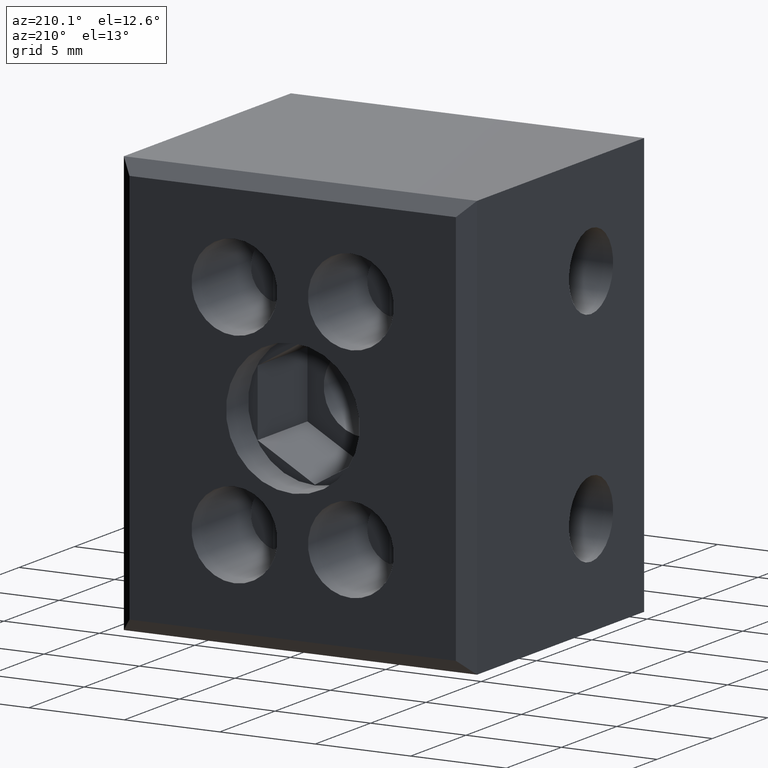
[diagram: clean part render]
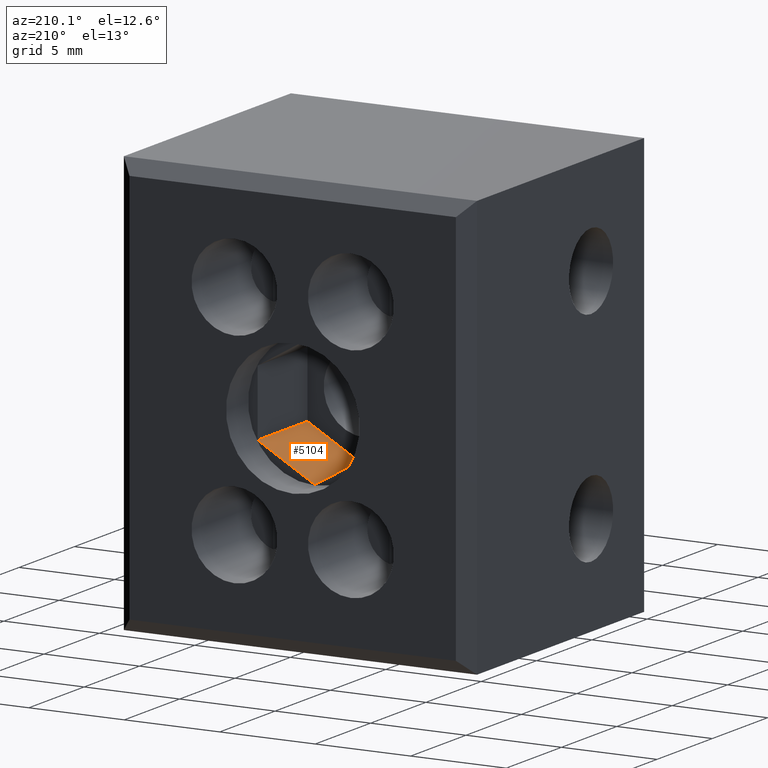
[diagram: same view with one face highlighted and labeled with its STEP entity id]
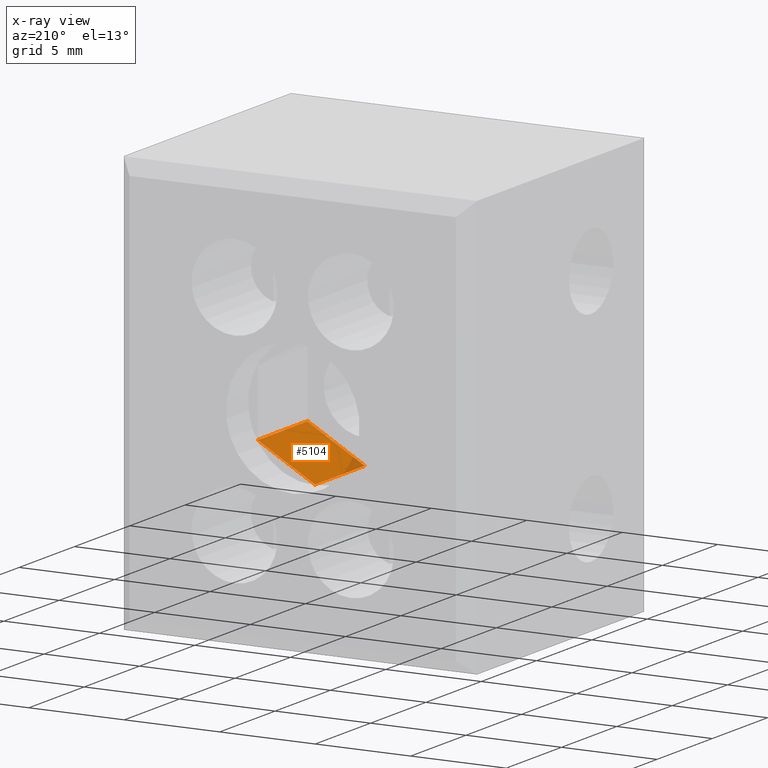
[diagram: x-ray of the same camera — body ghosted, the highlighted face saturated]
A machine part, auxiliary view. The second image highlights one B-rep face of the part: STEP entity #5104.
The next image is the same camera in x-ray: the body ghosted, the highlighted face saturated — about 4% of this face is hidden behind the body in this view.
In plain terms, the highlighted planar face has unit normal (0.5, 0, -0.866).
Its self-contained STEP definition (entity closure, byte-faithful):
#211 = VERTEX_POINT ( 'NONE', #469 ) ;
#246 = VERTEX_POINT ( 'NONE', #452 ) ;
#251 = VERTEX_POINT ( 'NONE', #462 ) ;
#276 = VERTEX_POINT ( 'NONE', #536 ) ;
#452 = CARTESIAN_POINT ( 'NONE',  ( 8.999999999999996400, 14.50000000000000000, -14.21019339286707300 ) ) ;
#462 = CARTESIAN_POINT ( 'NONE',  ( 11.99999999999999500, 14.50000000000000000, -12.47814258529819600 ) ) ;
#469 = CARTESIAN_POINT ( 'NONE',  ( 8.999999999999996400, 10.00000000000000200, -14.21019339286707300 ) ) ;
#536 = CARTESIAN_POINT ( 'NONE',  ( 11.99999999999999500, 10.00000000000000200, -12.47814258529819600 ) ) ;
#1052 = AXIS2_PLACEMENT_3D ( 'NONE', #2597, #2596, #2604 ) ;
#1330 = EDGE_LOOP ( 'NONE', ( #2031, #2063, #2075, #2066 ) ) ;
#1661 = EDGE_CURVE ( 'NONE', #276, #211, #4551, .T. ) ;
#1708 = EDGE_CURVE ( 'NONE', #276, #251, #4638, .T. ) ;
#1880 = EDGE_CURVE ( 'NONE', #251, #246, #4267, .T. ) ;
#1906 = EDGE_CURVE ( 'NONE', #211, #246, #4281, .T. ) ;
#2031 = ORIENTED_EDGE ( 'NONE', *, *, #1880, .T. ) ;
#2063 = ORIENTED_EDGE ( 'NONE', *, *, #1906, .F. ) ;
#2066 = ORIENTED_EDGE ( 'NONE', *, *, #1708, .T. ) ;
#2075 = ORIENTED_EDGE ( 'NONE', *, *, #1661, .F. ) ;
#2589 = PLANE ( 'NONE',  #1052 ) ;
#2596 = DIRECTION ( 'NONE',  ( 0.5000000000000001100, 0.0000000000000000000, -0.8660254037844387100 ) ) ;
#2597 = CARTESIAN_POINT ( 'NONE',  ( 11.99999999999999500, 10.00000000000000200, -12.47814258529819600 ) ) ;
#2602 = FACE_OUTER_BOUND ( 'NONE', #1330, .T. ) ;
#2604 = DIRECTION ( 'NONE',  ( -0.8660254037844386000, 0.0000000000000000000, -0.5000000000000000000 ) ) ;
#3355 = VECTOR ( 'NONE', #4560, 1000.000000000000200 ) ;
#3415 = VECTOR ( 'NONE', #4642, 1000.000000000000000 ) ;
#3500 = VECTOR ( 'NONE', #4265, 1000.000000000000200 ) ;
#3518 = VECTOR ( 'NONE', #4283, 1000.000000000000000 ) ;
#4263 = CARTESIAN_POINT ( 'NONE',  ( 11.99999999999999500, 14.50000000000000000, -12.47814258529819600 ) ) ;
#4265 = DIRECTION ( 'NONE',  ( -0.8660254037844386000, 0.0000000000000000000, -0.5000000000000000000 ) ) ;
#4267 = LINE ( 'NONE', #4263, #3500 ) ;
#4281 = LINE ( 'NONE', #4282, #3518 ) ;
#4282 = CARTESIAN_POINT ( 'NONE',  ( 8.999999999999996400, 10.00000000000000200, -14.21019339286707300 ) ) ;
#4283 = DIRECTION ( 'NONE',  ( -0.0000000000000000000, 1.000000000000000000, -0.0000000000000000000 ) ) ;
#4551 = LINE ( 'NONE', #4558, #3355 ) ;
#4558 = CARTESIAN_POINT ( 'NONE',  ( 11.99999999999999500, 10.00000000000000200, -12.47814258529819600 ) ) ;
#4560 = DIRECTION ( 'NONE',  ( -0.8660254037844386000, 0.0000000000000000000, -0.5000000000000000000 ) ) ;
#4624 = CARTESIAN_POINT ( 'NONE',  ( 11.99999999999999500, 10.00000000000000200, -12.47814258529819600 ) ) ;
#4638 = LINE ( 'NONE', #4624, #3415 ) ;
#4642 = DIRECTION ( 'NONE',  ( -0.0000000000000000000, 1.000000000000000000, -0.0000000000000000000 ) ) ;
#5104 = ADVANCED_FACE ( 'NONE', ( #2602 ), #2589, .F. ) ;